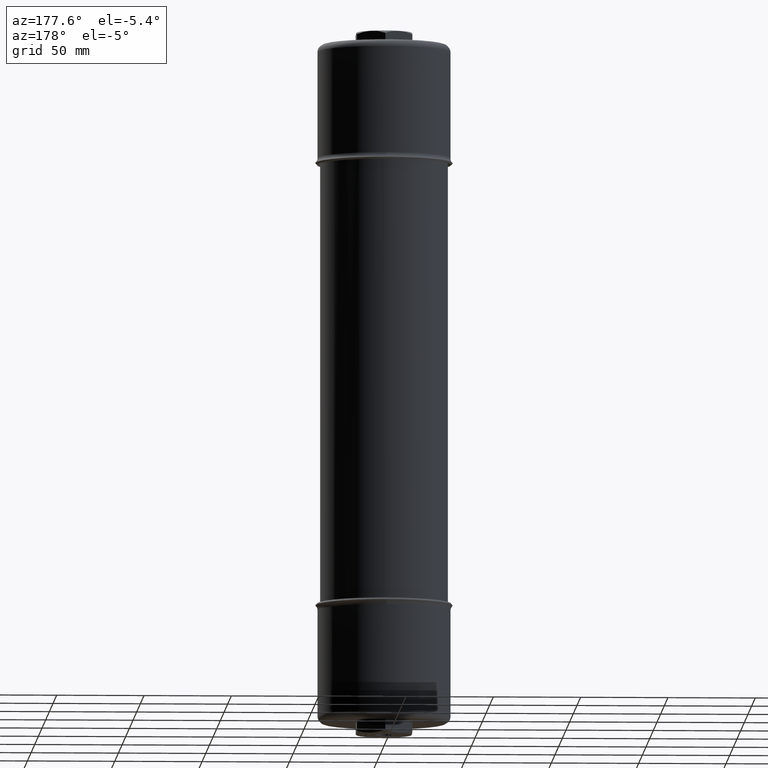
[diagram: clean part render]
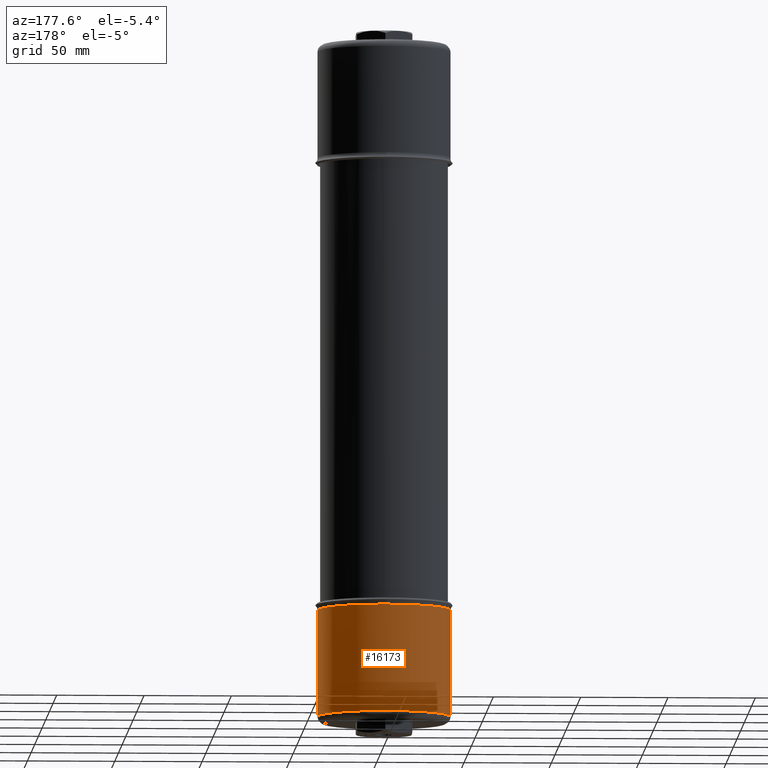
[diagram: same view with one face highlighted and labeled with its STEP entity id]
A machine part, auxiliary view. The second image highlights one B-rep face of the part: STEP entity #16173.
In plain terms, the highlighted cylindrical surface (partial cylindrical patch) has radius 38.0746 mm, axis along (-0, -0, 1).
Its self-contained STEP definition (entity closure, byte-faithful):
#65 = VERTEX_POINT ( 'NONE', #18062 ) ;
#860 = AXIS2_PLACEMENT_3D ( 'NONE', #15699, #7023, #17172 ) ;
#1258 = CARTESIAN_POINT ( 'NONE',  ( 1.499000000000102000, -3.736011143940007900E-015, -15.20649999999999700 ) ) ;
#1607 = CARTESIAN_POINT ( 'NONE',  ( 9.802634955765964000E-014, 1.498999999999991700, -12.69090000000000100 ) ) ;
#1850 = EDGE_LOOP ( 'NONE', ( #3442, #10878, #13702, #18225, #8493 ) ) ;
#1969 = VECTOR ( 'NONE', #17145, 39.37007874015748100 ) ;
#2190 = VERTEX_POINT ( 'NONE', #12061 ) ;
#2372 = DIRECTION ( 'NONE',  ( -3.491481426663245200E-015, -5.894733914543613400E-022, 1.000000000000000000 ) ) ;
#2830 = EDGE_CURVE ( 'NONE', #8584, #13945, #12605, .T. ) ;
#3442 = ORIENTED_EDGE ( 'NONE', *, *, #16757, .T. ) ;
#5811 = AXIS2_PLACEMENT_3D ( 'NONE', #18264, #2372, #18331 ) ;
#5828 = CARTESIAN_POINT ( 'NONE',  ( 9.813062361979235200E-014, -3.652801411123605600E-015, -12.69090000000000100 ) ) ;
#7023 = DIRECTION ( 'NONE',  ( -3.491481426663245200E-015, -5.894733914543613400E-022, 1.000000000000000000 ) ) ;
#7123 = CARTESIAN_POINT ( 'NONE',  ( -1.498999999999897100, -3.386014931217157400E-015, -12.69090000000000500 ) ) ;
#7187 = EDGE_CURVE ( 'NONE', #2190, #13945, #11078, .T. ) ;
#7277 = DIRECTION ( 'NONE',  ( 1.000000000000000000, -5.551115123126458200E-017, 2.915915136666334100E-015 ) ) ;
#8031 = CYLINDRICAL_SURFACE ( 'NONE', #5811, 1.498999999999995200 ) ;
#8070 = EDGE_CURVE ( 'NONE', #65, #8584, #9904, .T. ) ;
#8243 = CARTESIAN_POINT ( 'NONE',  ( 9.813062361979235200E-014, -3.652801411123605600E-015, -12.69090000000000100 ) ) ;
#8493 = ORIENTED_EDGE ( 'NONE', *, *, #11242, .F. ) ;
#8584 = VERTEX_POINT ( 'NONE', #1607 ) ;
#9699 = DIRECTION ( 'NONE',  ( 1.000000000000000000, -5.551115123126458200E-017, 2.915915136666334100E-015 ) ) ;
#9857 = FACE_OUTER_BOUND ( 'NONE', #1850, .T. ) ;
#9904 = CIRCLE ( 'NONE', #10970, 1.498999999999995200 ) ;
#10633 = VECTOR ( 'NONE', #14372, 39.37007874015748100 ) ;
#10878 = ORIENTED_EDGE ( 'NONE', *, *, #7187, .T. ) ;
#10970 = AXIS2_PLACEMENT_3D ( 'NONE', #5828, #15953, #7277 ) ;
#11078 = LINE ( 'NONE', #18456, #10633 ) ;
#11242 = EDGE_CURVE ( 'NONE', #14222, #65, #13491, .T. ) ;
#11678 = AXIS2_PLACEMENT_3D ( 'NONE', #8243, #18383, #9699 ) ;
#12061 = CARTESIAN_POINT ( 'NONE',  ( -1.498999999999892900, -3.386014222198561700E-015, -15.09650000000000400 ) ) ;
#12605 = CIRCLE ( 'NONE', #11678, 1.498999999999995200 ) ;
#13491 = LINE ( 'NONE', #1258, #1969 ) ;
#13702 = ORIENTED_EDGE ( 'NONE', *, *, #2830, .F. ) ;
#13945 = VERTEX_POINT ( 'NONE', #7123 ) ;
#14222 = VERTEX_POINT ( 'NONE', #18214 ) ;
#14372 = DIRECTION ( 'NONE',  ( -3.491481426663245200E-015, -5.894733914543613400E-022, 1.000000000000000000 ) ) ;
#15699 = CARTESIAN_POINT ( 'NONE',  ( 1.065297313397734400E-013, -3.652799993086415600E-015, -15.09650000000000100 ) ) ;
#15953 = DIRECTION ( 'NONE',  ( -3.491481426663245200E-015, -5.894733914543613400E-022, 1.000000000000000000 ) ) ;
#16173 = ADVANCED_FACE ( 'NONE', ( #9857 ), #8031, .T. ) ;
#16757 = EDGE_CURVE ( 'NONE', #14222, #2190, #18664, .T. ) ;
#17145 = DIRECTION ( 'NONE',  ( -3.491481426663245200E-015, -5.894733914543613400E-022, 1.000000000000000000 ) ) ;
#17172 = DIRECTION ( 'NONE',  ( 1.000000000000000000, -5.551115123126442100E-017, 2.915915136666326200E-015 ) ) ;
#18062 = CARTESIAN_POINT ( 'NONE',  ( 1.499000000000093100, -3.736011917800675700E-015, -12.69089999999999700 ) ) ;
#18214 = CARTESIAN_POINT ( 'NONE',  ( 1.499000000000106000, -3.736011208782080300E-015, -15.09649999999999500 ) ) ;
#18225 = ORIENTED_EDGE ( 'NONE', *, *, #8070, .F. ) ;
#18264 = CARTESIAN_POINT ( 'NONE',  ( 1.069137942967064100E-013, -3.652799928244342500E-015, -15.20650000000000000 ) ) ;
#18331 = DIRECTION ( 'NONE',  ( 1.000000000000000000, -5.551115123126458200E-017, 2.915915136666334100E-015 ) ) ;
#18383 = DIRECTION ( 'NONE',  ( -3.491481426663245200E-015, -5.894733914543613400E-022, 1.000000000000000000 ) ) ;
#18456 = CARTESIAN_POINT ( 'NONE',  ( -1.498999999999888400, -3.386014157356489600E-015, -15.20650000000000500 ) ) ;
#18664 = CIRCLE ( 'NONE', #860, 1.498999999999999400 ) ;